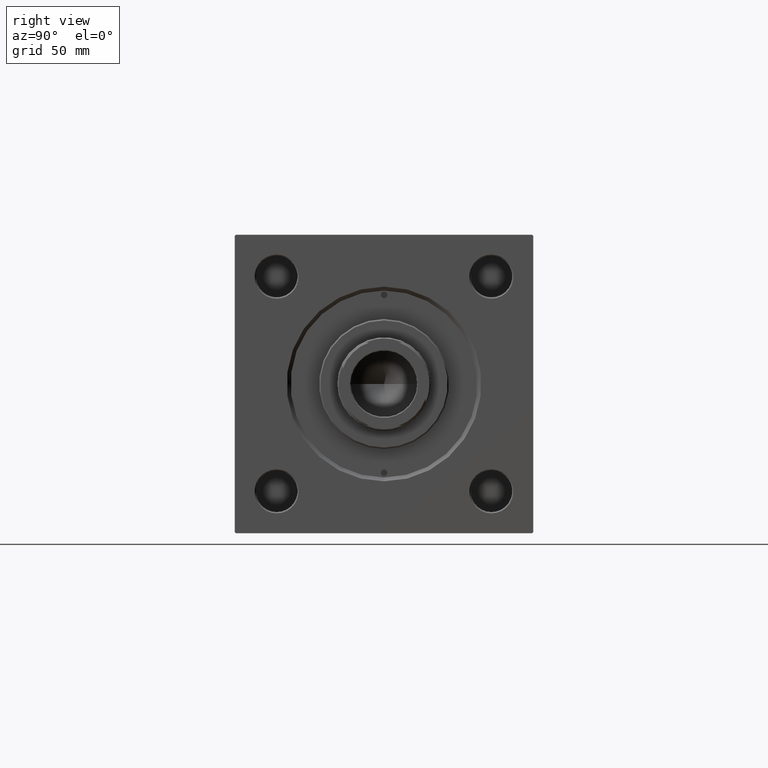
[diagram: clean part render]
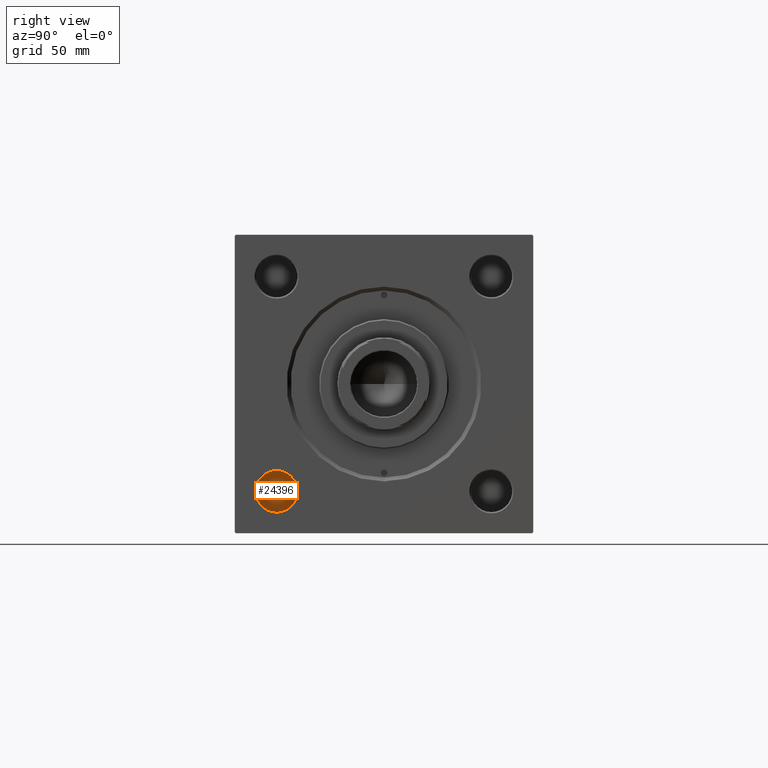
[diagram: same view with one face highlighted and labeled with its STEP entity id]
A machine part, right view. The second image highlights one B-rep face of the part: STEP entity #24396.
In plain terms, the highlighted planar face has unit normal (1, 0, 0).
Its self-contained STEP definition (entity closure, byte-faithful):
#773 = CIRCLE ( 'NONE', #35249, 8.000000000000000000 ) ;
#1330 = AXIS2_PLACEMENT_3D ( 'NONE', #21108, #24212, #39913 ) ;
#4349 = CARTESIAN_POINT ( 'NONE',  ( 149.0000000000000000, -41.34999999999999432, -33.35000000000000142 ) ) ;
#5440 = PLANE ( 'NONE',  #1330 ) ;
#8553 = FACE_OUTER_BOUND ( 'NONE', #14933, .T. ) ;
#11144 = VERTEX_POINT ( 'NONE', #4349 ) ;
#14933 = EDGE_LOOP ( 'NONE', ( #40173, #42856 ) ) ;
#19208 = CARTESIAN_POINT ( 'NONE',  ( 149.0000000000000000, -41.34999999999999432, -41.35000000000000142 ) ) ;
#21108 = CARTESIAN_POINT ( 'NONE',  ( 149.0000000000000000, -41.34999999999999432, -41.35000000000000142 ) ) ;
#24014 = VERTEX_POINT ( 'NONE', #40223 ) ;
#24212 = DIRECTION ( 'NONE',  ( 1.000000000000000000, 0.000000000000000000, 0.000000000000000000 ) ) ;
#24396 = ADVANCED_FACE ( 'NONE', ( #8553 ), #5440, .T. ) ;
#25201 = DIRECTION ( 'NONE',  ( 0.000000000000000000, 0.000000000000000000, -1.000000000000000000 ) ) ;
#26677 = CIRCLE ( 'NONE', #42405, 8.000000000000000000 ) ;
#30753 = DIRECTION ( 'NONE',  ( 0.000000000000000000, 0.000000000000000000, -1.000000000000000000 ) ) ;
#31807 = EDGE_CURVE ( 'NONE', #24014, #11144, #26677, .T. ) ;
#32924 = DIRECTION ( 'NONE',  ( 1.000000000000000000, 0.000000000000000000, 0.000000000000000000 ) ) ;
#35249 = AXIS2_PLACEMENT_3D ( 'NONE', #19208, #35390, #30753 ) ;
#35390 = DIRECTION ( 'NONE',  ( 1.000000000000000000, 0.000000000000000000, 0.000000000000000000 ) ) ;
#39913 = DIRECTION ( 'NONE',  ( 0.000000000000000000, 0.000000000000000000, -1.000000000000000000 ) ) ;
#40173 = ORIENTED_EDGE ( 'NONE', *, *, #31807, .T. ) ;
#40223 = CARTESIAN_POINT ( 'NONE',  ( 149.0000000000000000, -41.34999999999999432, -49.35000000000000853 ) ) ;
#41879 = EDGE_CURVE ( 'NONE', #11144, #24014, #773, .T. ) ;
#42405 = AXIS2_PLACEMENT_3D ( 'NONE', #45487, #32924, #25201 ) ;
#42856 = ORIENTED_EDGE ( 'NONE', *, *, #41879, .T. ) ;
#45487 = CARTESIAN_POINT ( 'NONE',  ( 149.0000000000000000, -41.34999999999999432, -41.35000000000000142 ) ) ;